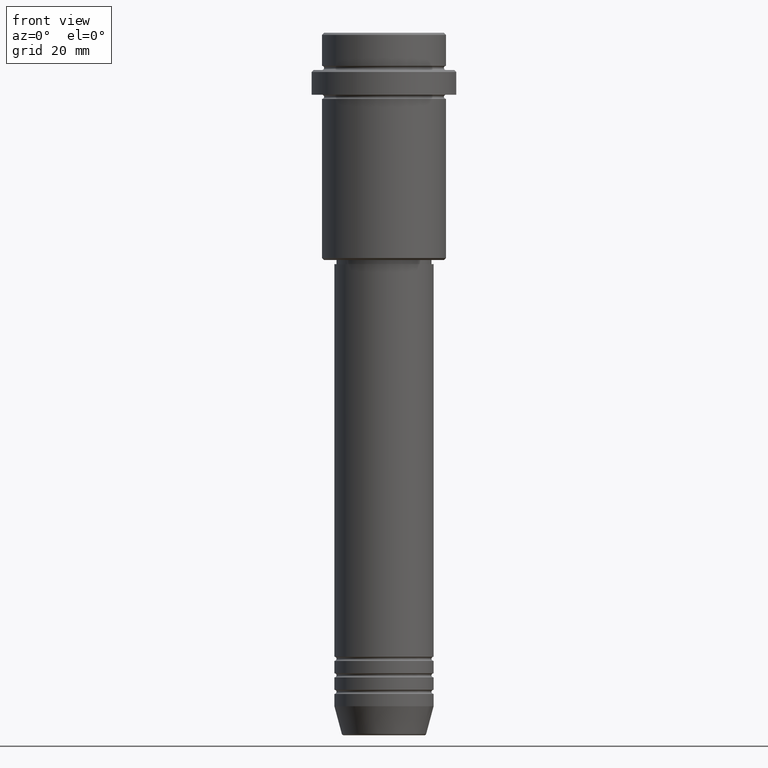
[diagram: clean part render]
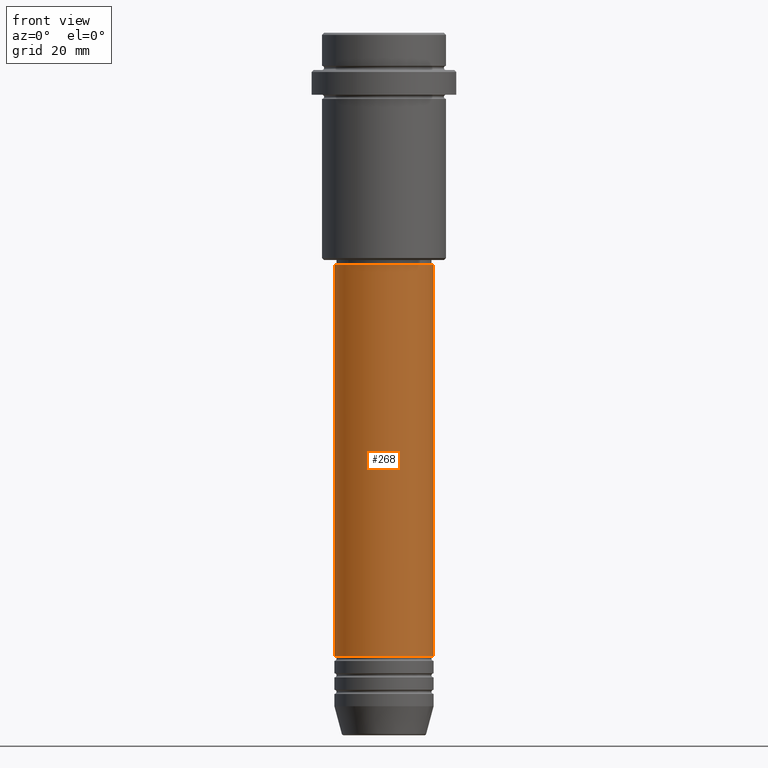
[diagram: same view with one face highlighted and labeled with its STEP entity id]
A machine part, front view. The second image highlights one B-rep face of the part: STEP entity #268.
In plain terms, the highlighted cylindrical surface (partial cylindrical patch) has radius 12 mm, axis along (-0, -0, 1).
Its self-contained STEP definition (entity closure, byte-faithful):
#46 = CARTESIAN_POINT ( 'NONE',  ( 11.99999999999999822, 0.000000000000000000, -55.99999999999998579 ) ) ;
#111 = AXIS2_PLACEMENT_3D ( 'NONE', #967, #1405, #437 ) ;
#229 = CYLINDRICAL_SURFACE ( 'NONE', #841, 12.00000000000000000 ) ;
#268 = ADVANCED_FACE ( 'NONE', ( #1087 ), #229, .T. ) ;
#290 = DIRECTION ( 'NONE',  ( -0.000000000000000000, -0.000000000000000000, 1.000000000000000000 ) ) ;
#333 = VERTEX_POINT ( 'NONE', #46 ) ;
#357 = EDGE_CURVE ( 'NONE', #790, #578, #1234, .T. ) ;
#437 = DIRECTION ( 'NONE',  ( 1.000000000000000000, 0.000000000000000000, 0.000000000000000000 ) ) ;
#446 = ORIENTED_EDGE ( 'NONE', *, *, #829, .F. ) ;
#458 = VECTOR ( 'NONE', #604, 1000.000000000000000 ) ;
#466 = CARTESIAN_POINT ( 'NONE',  ( -11.99999999999999822, 1.469576158976823750E-15, -55.99999999999998579 ) ) ;
#514 = EDGE_CURVE ( 'NONE', #1296, #333, #1063, .T. ) ;
#549 = VECTOR ( 'NONE', #290, 1000.000000000000000 ) ;
#558 = CARTESIAN_POINT ( 'NONE',  ( 0.000000000000000000, 0.000000000000000000, 0.000000000000000000 ) ) ;
#574 = AXIS2_PLACEMENT_3D ( 'NONE', #971, #1183, #1408 ) ;
#578 = VERTEX_POINT ( 'NONE', #466 ) ;
#604 = DIRECTION ( 'NONE',  ( -0.000000000000000000, -0.000000000000000000, 1.000000000000000000 ) ) ;
#790 = VERTEX_POINT ( 'NONE', #1278 ) ;
#829 = EDGE_CURVE ( 'NONE', #578, #333, #889, .T. ) ;
#841 = AXIS2_PLACEMENT_3D ( 'NONE', #558, #1328, #1219 ) ;
#889 = CIRCLE ( 'NONE', #574, 11.99999999999999822 ) ;
#915 = CIRCLE ( 'NONE', #111, 12.00000000000000000 ) ;
#947 = ORIENTED_EDGE ( 'NONE', *, *, #357, .F. ) ;
#967 = CARTESIAN_POINT ( 'NONE',  ( 0.000000000000000000, 0.000000000000000000, -150.9999999999998579 ) ) ;
#971 = CARTESIAN_POINT ( 'NONE',  ( 0.000000000000000000, 0.000000000000000000, -55.99999999999998579 ) ) ;
#993 = ORIENTED_EDGE ( 'NONE', *, *, #514, .T. ) ;
#1063 = LINE ( 'NONE', #1395, #549 ) ;
#1077 = EDGE_CURVE ( 'NONE', #790, #1296, #915, .T. ) ;
#1087 = FACE_OUTER_BOUND ( 'NONE', #1251, .T. ) ;
#1118 = CARTESIAN_POINT ( 'NONE',  ( -12.00000000000000000, 1.469576158976823947E-15, 0.000000000000000000 ) ) ;
#1183 = DIRECTION ( 'NONE',  ( -0.000000000000000000, -0.000000000000000000, 1.000000000000000000 ) ) ;
#1219 = DIRECTION ( 'NONE',  ( 1.000000000000000000, 0.000000000000000000, 0.000000000000000000 ) ) ;
#1234 = LINE ( 'NONE', #1118, #458 ) ;
#1251 = EDGE_LOOP ( 'NONE', ( #947, #1308, #993, #446 ) ) ;
#1278 = CARTESIAN_POINT ( 'NONE',  ( -12.00000000000000000, 1.469576158976823947E-15, -150.9999999999998579 ) ) ;
#1296 = VERTEX_POINT ( 'NONE', #1379 ) ;
#1308 = ORIENTED_EDGE ( 'NONE', *, *, #1077, .T. ) ;
#1328 = DIRECTION ( 'NONE',  ( -0.000000000000000000, -0.000000000000000000, 1.000000000000000000 ) ) ;
#1379 = CARTESIAN_POINT ( 'NONE',  ( 12.00000000000000000, 0.000000000000000000, -150.9999999999998579 ) ) ;
#1395 = CARTESIAN_POINT ( 'NONE',  ( 12.00000000000000000, 0.000000000000000000, 0.000000000000000000 ) ) ;
#1405 = DIRECTION ( 'NONE',  ( -0.000000000000000000, -0.000000000000000000, 1.000000000000000000 ) ) ;
#1408 = DIRECTION ( 'NONE',  ( 1.000000000000000000, 0.000000000000000000, 0.000000000000000000 ) ) ;